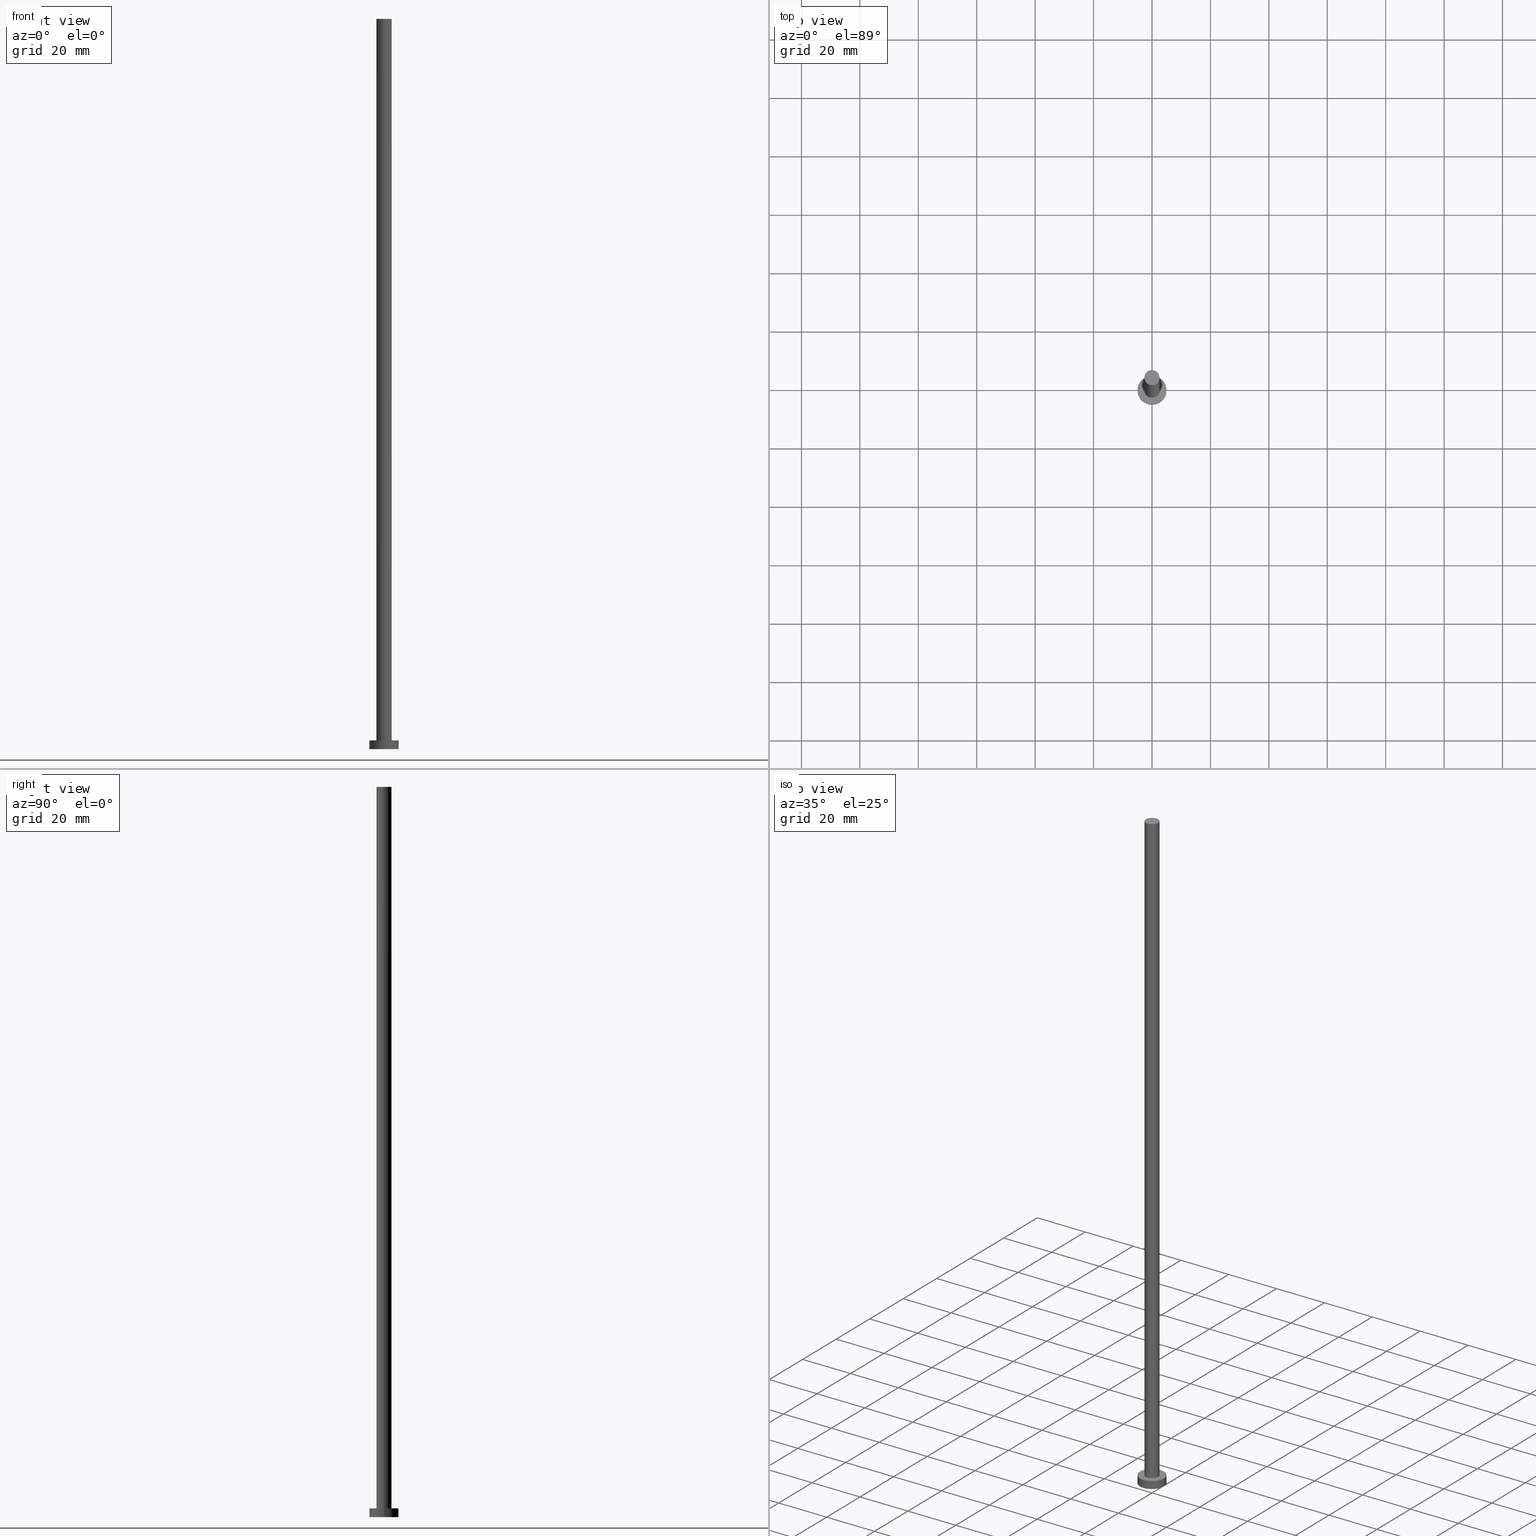
[diagram: canonical four-view strip — front | top / right | iso, engineering-drawing reading convention]
A machine part, canonical four-view strip (front | top / right | iso — engineering-drawing reading convention). The complete STEP part file that produces these views, byte-faithful:
ISO-10303-21;
HEADER;
FILE_DESCRIPTION (( 'STEP AP203' ),
    '1' );
FILE_NAME ('608e.STEP',
    '2023-02-13T15:48:42',
    ( '' ),
    ( '' ),
    'SwSTEP 2.0',
    'SolidWorks 2019',
    '' );
FILE_SCHEMA (( 'CONFIG_CONTROL_DESIGN' ));
ENDSEC;

DATA;
#1 = ORIENTED_EDGE ( 'NONE', *, *, #193, .F. ) ;
#2 = EDGE_LOOP ( 'NONE', ( #4, #239, #67, #217 ) ) ;
#3 = PERSON_AND_ORGANIZATION ( #20, #211 ) ;
#4 = ORIENTED_EDGE ( 'NONE', *, *, #100, .F. ) ;
#5 = PERSON_AND_ORGANIZATION ( #20, #211 ) ;
#6 = APPLICATION_CONTEXT ( 'configuration controlled 3d designs of mechanical parts and assemblies' ) ;
#7 = ORIENTED_EDGE ( 'NONE', *, *, #209, .F. ) ;
#8 = PERSON_AND_ORGANIZATION_ROLE ( 'design_supplier' ) ;
#9 = DIRECTION ( 'NONE',  ( 1.000000000000000000, 0.000000000000000000, 0.000000000000000000 ) ) ;
#10 = APPROVAL_STATUS ( 'not_yet_approved' ) ;
#11 = PLANE ( 'NONE',  #31 ) ;
#12 = CARTESIAN_POINT ( 'NONE',  ( -5.000000000000000000, 0.000000000000000000, 3.000000000000000000 ) ) ;
#13 = DIRECTION ( 'NONE',  ( -0.000000000000000000, -0.000000000000000000, -1.000000000000000000 ) ) ;
#14 = DATE_AND_TIME ( #180, #64 ) ;
#15 = CC_DESIGN_APPROVAL ( #107, ( #148 ) ) ;
#16 = PLANE ( 'NONE',  #200 ) ;
#17 = APPROVAL_STATUS ( 'not_yet_approved' ) ;
#18 = AXIS2_PLACEMENT_3D ( 'NONE', #118, #159, #60 ) ;
#19 = CC_DESIGN_DATE_AND_TIME_ASSIGNMENT ( #171, #146, ( #148 ) ) ;
#20 = PERSON ( 'NEUR�EN�', 'NEUR�EN�', 'NEUR�EN�', ('NEUR�EN�'), ('NEUR�EN�'), ('NEUR�EN�') ) ;
#21 = EDGE_LOOP ( 'NONE', ( #56, #215 ) ) ;
#22 = EDGE_LOOP ( 'NONE', ( #131, #149 ) ) ;
#23 = EDGE_LOOP ( 'NONE', ( #27, #191 ) ) ;
#24 = CC_DESIGN_PERSON_AND_ORGANIZATION_ASSIGNMENT ( #69, #44, ( #148 ) ) ;
#25 = VERTEX_POINT ( 'NONE', #89 ) ;
#26 = APPROVAL_DATE_TIME ( #192, #107 ) ;
#27 = ORIENTED_EDGE ( 'NONE', *, *, #242, .F. ) ;
#28 = CALENDAR_DATE ( 2023, 13, 2 ) ;
#29 = DIRECTION ( 'NONE',  ( 0.000000000000000000, 0.000000000000000000, 1.000000000000000000 ) ) ;
#30 = CARTESIAN_POINT ( 'NONE',  ( -2.600000000000000089, 0.000000000000000000, 3.000000000000000000 ) ) ;
#31 = AXIS2_PLACEMENT_3D ( 'NONE', #101, #244, #80 ) ;
#32 = FACE_OUTER_BOUND ( 'NONE', #21, .T. ) ;
#33 = CARTESIAN_POINT ( 'NONE',  ( 5.000000000000000000, 6.123233995736766282E-16, 3.000000000000000000 ) ) ;
#34 = CARTESIAN_POINT ( 'NONE',  ( -2.600000000000000089, 0.000000000000000000, 250.0000000000000000 ) ) ;
#35 = SECURITY_CLASSIFICATION ( '', '', #115 ) ;
#36 =( GEOMETRIC_REPRESENTATION_CONTEXT ( 3 ) GLOBAL_UNCERTAINTY_ASSIGNED_CONTEXT ( ( #96 ) ) GLOBAL_UNIT_ASSIGNED_CONTEXT ( ( #182, #251, #144 ) ) REPRESENTATION_CONTEXT ( 'NONE', 'WORKASPACE' ) );
#37 = VERTEX_POINT ( 'NONE', #40 ) ;
#38 = ORIENTED_EDGE ( 'NONE', *, *, #167, .T. ) ;
#39 = CLOSED_SHELL ( 'NONE', ( #142, #41, #183, #86, #55, #128, #247 ) ) ;
#40 = CARTESIAN_POINT ( 'NONE',  ( 2.600000000000000089, 3.184081677783118191E-16, 250.0000000000000000 ) ) ;
#41 = ADVANCED_FACE ( 'NONE', ( #195 ), #71, .T. ) ;
#42 = COORDINATED_UNIVERSAL_TIME_OFFSET ( 1, 0, .AHEAD. ) ;
#43 = COORDINATED_UNIVERSAL_TIME_OFFSET ( 1, 0, .AHEAD. ) ;
#44 = PERSON_AND_ORGANIZATION_ROLE ( 'creator' ) ;
#45 = DIRECTION ( 'NONE',  ( 1.000000000000000000, 0.000000000000000000, 0.000000000000000000 ) ) ;
#46 = LOCAL_TIME ( 16, 48, 42.00000000000000000, #42 ) ;
#47 = DIRECTION ( 'NONE',  ( 0.000000000000000000, 0.000000000000000000, 1.000000000000000000 ) ) ;
#48 = CARTESIAN_POINT ( 'NONE',  ( -5.000000000000000000, 0.000000000000000000, 0.000000000000000000 ) ) ;
#49 = DATE_TIME_ROLE ( 'classification_date' ) ;
#50 = VECTOR ( 'NONE', #157, 1000.000000000000000 ) ;
#51 = DIRECTION ( 'NONE',  ( 0.000000000000000000, 0.000000000000000000, 1.000000000000000000 ) ) ;
#52 = EDGE_CURVE ( 'NONE', #37, #168, #176, .T. ) ;
#53 = FACE_OUTER_BOUND ( 'NONE', #136, .T. ) ;
#54 = AXIS2_PLACEMENT_3D ( 'NONE', #189, #111, #145 ) ;
#55 = ADVANCED_FACE ( 'NONE', ( #32 ), #11, .F. ) ;
#56 = ORIENTED_EDGE ( 'NONE', *, *, #241, .F. ) ;
#57 = PERSON_AND_ORGANIZATION ( #20, #211 ) ;
#58 = PERSON_AND_ORGANIZATION_ROLE ( 'creator' ) ;
#59 = DIRECTION ( 'NONE',  ( -0.000000000000000000, -0.000000000000000000, -1.000000000000000000 ) ) ;
#60 = DIRECTION ( 'NONE',  ( 1.000000000000000000, 0.000000000000000000, 0.000000000000000000 ) ) ;
#61 = CARTESIAN_POINT ( 'NONE',  ( 0.000000000000000000, 0.000000000000000000, 0.000000000000000000 ) ) ;
#62 = DATE_AND_TIME ( #76, #81 ) ;
#63 = CARTESIAN_POINT ( 'NONE',  ( 5.000000000000000000, 6.123233995736766282E-16, 0.000000000000000000 ) ) ;
#64 = LOCAL_TIME ( 16, 48, 42.00000000000000000, #206 ) ;
#65 = DIRECTION ( 'NONE',  ( -1.000000000000000000, 0.000000000000000000, 0.000000000000000000 ) ) ;
#66 = DIRECTION ( 'NONE',  ( 0.000000000000000000, 0.000000000000000000, 1.000000000000000000 ) ) ;
#67 = ORIENTED_EDGE ( 'NONE', *, *, #193, .T. ) ;
#68 = ORIENTED_EDGE ( 'NONE', *, *, #143, .T. ) ;
#69 = PERSON_AND_ORGANIZATION ( #20, #211 ) ;
#70 = CIRCLE ( 'NONE', #140, 2.600000000000000089 ) ;
#71 = CYLINDRICAL_SURFACE ( 'NONE', #130, 5.000000000000000000 ) ;
#72 = ORIENTED_EDGE ( 'NONE', *, *, #234, .T. ) ;
#73 = ORIENTED_EDGE ( 'NONE', *, *, #161, .F. ) ;
#74 = DIRECTION ( 'NONE',  ( -1.000000000000000000, 0.000000000000000000, 0.000000000000000000 ) ) ;
#75 = FACE_OUTER_BOUND ( 'NONE', #150, .T. ) ;
#76 = CALENDAR_DATE ( 2023, 13, 2 ) ;
#77 = CARTESIAN_POINT ( 'NONE',  ( 2.600000000000000089, 3.184081677783118191E-16, 3.000000000000000000 ) ) ;
#78 = APPROVAL_DATE_TIME ( #14, #147 ) ;
#79 = FACE_OUTER_BOUND ( 'NONE', #151, .T. ) ;
#80 = DIRECTION ( 'NONE',  ( 1.000000000000000000, 0.000000000000000000, -0.000000000000000000 ) ) ;
#81 = LOCAL_TIME ( 16, 48, 42.00000000000000000, #240 ) ;
#82 = DIRECTION ( 'NONE',  ( 1.000000000000000000, 0.000000000000000000, 0.000000000000000000 ) ) ;
#83 = PRODUCT_DEFINITION_SHAPE ( 'NONE', 'NONE',  #148 ) ;
#84 = CIRCLE ( 'NONE', #185, 5.000000000000000000 ) ;
#85 = APPLICATION_PROTOCOL_DEFINITION ( 'international standard', 'config_control_design', 1994, #6 ) ;
#86 = ADVANCED_FACE ( 'NONE', ( #98, #75 ), #16, .T. ) ;
#87 = MANIFOLD_SOLID_BREP ( 'P�idat vysunut�m3', #39 ) ;
#88 = ORIENTED_EDGE ( 'NONE', *, *, #242, .T. ) ;
#89 = CARTESIAN_POINT ( 'NONE',  ( 5.000000000000000000, 6.123233995736766282E-16, 3.000000000000000000 ) ) ;
#90 = VERTEX_POINT ( 'NONE', #153 ) ;
#91 = CALENDAR_DATE ( 2023, 13, 2 ) ;
#92 = AXIS2_PLACEMENT_3D ( 'NONE', #198, #29, #9 ) ;
#93 = VERTEX_POINT ( 'NONE', #48 ) ;
#94 = APPROVAL_DATE_TIME ( #114, #227 ) ;
#95 = PRODUCT_DEFINITION_FORMATION_WITH_SPECIFIED_SOURCE ( 'LIBOVOLN�', '', #207, .NOT_KNOWN. ) ;
#96 = UNCERTAINTY_MEASURE_WITH_UNIT (LENGTH_MEASURE( 1.000000000000000082E-05 ), #182, 'distance_accuracy_value', 'NONE');
#97 = CARTESIAN_POINT ( 'NONE',  ( -2.600000000000000089, 0.000000000000000000, 250.0000000000000000 ) ) ;
#98 = FACE_BOUND ( 'NONE', #23, .T. ) ;
#99 = CIRCLE ( 'NONE', #253, 5.000000000000000000 ) ;
#100 = EDGE_CURVE ( 'NONE', #25, #113, #139, .T. ) ;
#101 = CARTESIAN_POINT ( 'NONE',  ( 0.000000000000000000, 0.000000000000000000, 0.000000000000000000 ) ) ;
#102 = DIRECTION ( 'NONE',  ( -0.000000000000000000, -0.000000000000000000, -1.000000000000000000 ) ) ;
#103 = CARTESIAN_POINT ( 'NONE',  ( 0.000000000000000000, 0.000000000000000000, 250.0000000000000000 ) ) ;
#104 = AXIS2_PLACEMENT_3D ( 'NONE', #187, #165, #127 ) ;
#105 = APPLICATION_CONTEXT ( 'configuration controlled 3d designs of mechanical parts and assemblies' ) ;
#106 = AXIS2_PLACEMENT_3D ( 'NONE', #208, #66, #82 ) ;
#107 = APPROVAL ( #10, 'NEUR�EN�' ) ;
#108 = AXIS2_PLACEMENT_3D ( 'NONE', #205, #51, #141 ) ;
#109 = CIRCLE ( 'NONE', #104, 2.600000000000000089 ) ;
#110 = FACE_OUTER_BOUND ( 'NONE', #22, .T. ) ;
#111 = DIRECTION ( 'NONE',  ( 0.000000000000000000, 0.000000000000000000, 1.000000000000000000 ) ) ;
#112 = ORIENTED_EDGE ( 'NONE', *, *, #100, .T. ) ;
#113 = VERTEX_POINT ( 'NONE', #63 ) ;
#114 = DATE_AND_TIME ( #243, #203 ) ;
#115 = SECURITY_CLASSIFICATION_LEVEL ( 'unclassified' ) ;
#116 = LOCAL_TIME ( 16, 48, 42.00000000000000000, #216 ) ;
#117 = APPROVAL_ROLE ( '' ) ;
#118 = CARTESIAN_POINT ( 'NONE',  ( 0.000000000000000000, 0.000000000000000000, 3.000000000000000000 ) ) ;
#119 = CC_DESIGN_PERSON_AND_ORGANIZATION_ASSIGNMENT ( #134, #8, ( #95 ) ) ;
#120 = DIRECTION ( 'NONE',  ( 1.000000000000000000, 0.000000000000000000, 0.000000000000000000 ) ) ;
#121 = FACE_OUTER_BOUND ( 'NONE', #2, .T. ) ;
#122 = CIRCLE ( 'NONE', #18, 5.000000000000000000 ) ;
#123 = AXIS2_PLACEMENT_3D ( 'NONE', #225, #13, #74 ) ;
#124 = DIRECTION ( 'NONE',  ( 1.000000000000000000, 0.000000000000000000, -0.000000000000000000 ) ) ;
#125 = APPROVAL_PERSON_ORGANIZATION ( #57, #227, #117 ) ;
#126 = CYLINDRICAL_SURFACE ( 'NONE', #184, 2.600000000000000089 ) ;
#127 = DIRECTION ( 'NONE',  ( 1.000000000000000000, 0.000000000000000000, 0.000000000000000000 ) ) ;
#128 = ADVANCED_FACE ( 'NONE', ( #53 ), #156, .T. ) ;
#129 = MECHANICAL_CONTEXT ( 'NONE', #6, 'mechanical' ) ;
#130 = AXIS2_PLACEMENT_3D ( 'NONE', #219, #204, #249 ) ;
#131 = ORIENTED_EDGE ( 'NONE', *, *, #161, .T. ) ;
#132 = APPLICATION_PROTOCOL_DEFINITION ( 'international standard', 'config_control_design', 1994, #105 ) ;
#133 = CC_DESIGN_APPROVAL ( #227, ( #95 ) ) ;
#134 = PERSON_AND_ORGANIZATION ( #20, #211 ) ;
#135 = EDGE_CURVE ( 'NONE', #90, #25, #122, .T. ) ;
#136 = EDGE_LOOP ( 'NONE', ( #7, #73, #68, #88 ) ) ;
#137 = LINE ( 'NONE', #221, #214 ) ;
#138 = LINE ( 'NONE', #34, #50 ) ;
#139 = LINE ( 'NONE', #33, #163 ) ;
#140 = AXIS2_PLACEMENT_3D ( 'NONE', #103, #223, #45 ) ;
#141 = DIRECTION ( 'NONE',  ( 1.000000000000000000, 0.000000000000000000, 0.000000000000000000 ) ) ;
#142 = ADVANCED_FACE ( 'NONE', ( #79 ), #126, .T. ) ;
#143 = EDGE_CURVE ( 'NONE', #168, #238, #138, .T. ) ;
#144 =( NAMED_UNIT ( * ) SI_UNIT ( $, .STERADIAN. ) SOLID_ANGLE_UNIT ( ) );
#145 = DIRECTION ( 'NONE',  ( 1.000000000000000000, 0.000000000000000000, 0.000000000000000000 ) ) ;
#146 = DATE_TIME_ROLE ( 'creation_date' ) ;
#147 = APPROVAL ( #17, 'NEUR�EN�' ) ;
#148 = PRODUCT_DEFINITION ( 'NEZN�M�', '', #95, #229 ) ;
#149 = ORIENTED_EDGE ( 'NONE', *, *, #52, .T. ) ;
#150 = EDGE_LOOP ( 'NONE', ( #235, #38 ) ) ;
#151 = EDGE_LOOP ( 'NONE', ( #166, #196, #170, #236 ) ) ;
#152 = PERSON_AND_ORGANIZATION_ROLE ( 'classification_officer' ) ;
#153 = CARTESIAN_POINT ( 'NONE',  ( -5.000000000000000000, 0.000000000000000000, 3.000000000000000000 ) ) ;
#154 = ADVANCED_BREP_SHAPE_REPRESENTATION ( '608e', ( #87, #54 ), #36 ) ;
#155 = APPROVAL_STATUS ( 'not_yet_approved' ) ;
#156 = CYLINDRICAL_SURFACE ( 'NONE', #237, 2.600000000000000089 ) ;
#157 = DIRECTION ( 'NONE',  ( -0.000000000000000000, -0.000000000000000000, -1.000000000000000000 ) ) ;
#158 = CARTESIAN_POINT ( 'NONE',  ( 0.000000000000000000, 0.000000000000000000, 0.000000000000000000 ) ) ;
#159 = DIRECTION ( 'NONE',  ( 0.000000000000000000, 0.000000000000000000, 1.000000000000000000 ) ) ;
#160 = CC_DESIGN_PERSON_AND_ORGANIZATION_ASSIGNMENT ( #3, #58, ( #95 ) ) ;
#161 = EDGE_CURVE ( 'NONE', #168, #37, #70, .T. ) ;
#162 = AXIS2_PLACEMENT_3D ( 'NONE', #186, #255, #254 ) ;
#163 = VECTOR ( 'NONE', #102, 1000.000000000000000 ) ;
#164 = DIRECTION ( 'NONE',  ( 1.000000000000000000, 0.000000000000000000, 0.000000000000000000 ) ) ;
#165 = DIRECTION ( 'NONE',  ( 0.000000000000000000, 0.000000000000000000, 1.000000000000000000 ) ) ;
#166 = ORIENTED_EDGE ( 'NONE', *, *, #52, .F. ) ;
#167 = EDGE_CURVE ( 'NONE', #25, #90, #169, .T. ) ;
#168 = VERTEX_POINT ( 'NONE', #97 ) ;
#169 = CIRCLE ( 'NONE', #92, 5.000000000000000000 ) ;
#170 = ORIENTED_EDGE ( 'NONE', *, *, #252, .T. ) ;
#171 = DATE_AND_TIME ( #28, #46 ) ;
#172 = EDGE_LOOP ( 'NONE', ( #188, #112, #72, #1 ) ) ;
#173 = APPROVAL_ROLE ( '' ) ;
#174 = LINE ( 'NONE', #12, #231 ) ;
#175 = PERSON_AND_ORGANIZATION ( #20, #211 ) ;
#176 = CIRCLE ( 'NONE', #108, 2.600000000000000089 ) ;
#177 = DIRECTION ( 'NONE',  ( -0.000000000000000000, -0.000000000000000000, -1.000000000000000000 ) ) ;
#178 = APPROVAL_ROLE ( '' ) ;
#179 = CARTESIAN_POINT ( 'NONE',  ( 0.000000000000000000, 0.000000000000000000, 250.0000000000000000 ) ) ;
#180 = CALENDAR_DATE ( 2023, 13, 2 ) ;
#181 = DIRECTION ( 'NONE',  ( 0.000000000000000000, 0.000000000000000000, 1.000000000000000000 ) ) ;
#182 =( LENGTH_UNIT ( ) NAMED_UNIT ( * ) SI_UNIT ( .MILLI., .METRE. ) );
#183 = ADVANCED_FACE ( 'NONE', ( #121 ), #201, .T. ) ;
#184 = AXIS2_PLACEMENT_3D ( 'NONE', #199, #250, #65 ) ;
#185 = AXIS2_PLACEMENT_3D ( 'NONE', #61, #212, #164 ) ;
#186 = CARTESIAN_POINT ( 'NONE',  ( 0.000000000000000000, 0.000000000000000000, 250.0000000000000000 ) ) ;
#187 = CARTESIAN_POINT ( 'NONE',  ( 0.000000000000000000, 0.000000000000000000, 3.000000000000000000 ) ) ;
#188 = ORIENTED_EDGE ( 'NONE', *, *, #167, .F. ) ;
#189 = CARTESIAN_POINT ( 'NONE',  ( 0.000000000000000000, 0.000000000000000000, 0.000000000000000000 ) ) ;
#190 = PRODUCT_RELATED_PRODUCT_CATEGORY ( 'detail', '', ( #207 ) ) ;
#191 = ORIENTED_EDGE ( 'NONE', *, *, #252, .F. ) ;
#192 = DATE_AND_TIME ( #91, #116 ) ;
#193 = EDGE_CURVE ( 'NONE', #90, #93, #174, .T. ) ;
#194 = CC_DESIGN_APPROVAL ( #147, ( #35 ) ) ;
#195 = FACE_OUTER_BOUND ( 'NONE', #172, .T. ) ;
#196 = ORIENTED_EDGE ( 'NONE', *, *, #209, .T. ) ;
#197 = PERSON_AND_ORGANIZATION_ROLE ( 'design_owner' ) ;
#198 = CARTESIAN_POINT ( 'NONE',  ( 0.000000000000000000, 0.000000000000000000, 3.000000000000000000 ) ) ;
#199 = CARTESIAN_POINT ( 'NONE',  ( 0.000000000000000000, 0.000000000000000000, 250.0000000000000000 ) ) ;
#200 = AXIS2_PLACEMENT_3D ( 'NONE', #226, #181, #124 ) ;
#201 = CYLINDRICAL_SURFACE ( 'NONE', #123, 5.000000000000000000 ) ;
#202 = CC_DESIGN_PERSON_AND_ORGANIZATION_ASSIGNMENT ( #222, #197, ( #207 ) ) ;
#203 = LOCAL_TIME ( 16, 48, 42.00000000000000000, #43 ) ;
#204 = DIRECTION ( 'NONE',  ( -0.000000000000000000, -0.000000000000000000, -1.000000000000000000 ) ) ;
#205 = CARTESIAN_POINT ( 'NONE',  ( 0.000000000000000000, 0.000000000000000000, 250.0000000000000000 ) ) ;
#206 = COORDINATED_UNIVERSAL_TIME_OFFSET ( 1, 0, .AHEAD. ) ;
#207 = PRODUCT ( '608e', '608e', '', ( #129 ) ) ;
#208 = CARTESIAN_POINT ( 'NONE',  ( 0.000000000000000000, 0.000000000000000000, 3.000000000000000000 ) ) ;
#209 = EDGE_CURVE ( 'NONE', #37, #213, #137, .T. ) ;
#210 = PLANE ( 'NONE',  #162 ) ;
#211 = ORGANIZATION ( 'NEUR�EN�', 'NEUR�EN�', '' ) ;
#212 = DIRECTION ( 'NONE',  ( 0.000000000000000000, 0.000000000000000000, 1.000000000000000000 ) ) ;
#213 = VERTEX_POINT ( 'NONE', #77 ) ;
#214 = VECTOR ( 'NONE', #248, 1000.000000000000000 ) ;
#215 = ORIENTED_EDGE ( 'NONE', *, *, #234, .F. ) ;
#216 = COORDINATED_UNIVERSAL_TIME_OFFSET ( 1, 0, .AHEAD. ) ;
#217 = ORIENTED_EDGE ( 'NONE', *, *, #241, .T. ) ;
#218 = CC_DESIGN_PERSON_AND_ORGANIZATION_ASSIGNMENT ( #5, #152, ( #35 ) ) ;
#219 = CARTESIAN_POINT ( 'NONE',  ( 0.000000000000000000, 0.000000000000000000, 3.000000000000000000 ) ) ;
#220 = APPROVAL_PERSON_ORGANIZATION ( #230, #147, #178 ) ;
#221 = CARTESIAN_POINT ( 'NONE',  ( 2.600000000000000089, 3.184081677783118191E-16, 250.0000000000000000 ) ) ;
#222 = PERSON_AND_ORGANIZATION ( #20, #211 ) ;
#223 = DIRECTION ( 'NONE',  ( 0.000000000000000000, 0.000000000000000000, 1.000000000000000000 ) ) ;
#224 = CIRCLE ( 'NONE', #106, 2.600000000000000089 ) ;
#225 = CARTESIAN_POINT ( 'NONE',  ( 0.000000000000000000, 0.000000000000000000, 3.000000000000000000 ) ) ;
#226 = CARTESIAN_POINT ( 'NONE',  ( 0.000000000000000000, 0.000000000000000000, 3.000000000000000000 ) ) ;
#227 = APPROVAL ( #155, 'NEUR�EN�' ) ;
#228 = SHAPE_DEFINITION_REPRESENTATION ( #83, #154 ) ;
#229 = DESIGN_CONTEXT ( 'detailed design', #105, 'design' ) ;
#230 = PERSON_AND_ORGANIZATION ( #20, #211 ) ;
#231 = VECTOR ( 'NONE', #59, 1000.000000000000000 ) ;
#232 = CC_DESIGN_SECURITY_CLASSIFICATION ( #35, ( #95 ) ) ;
#233 = APPROVAL_PERSON_ORGANIZATION ( #175, #107, #173 ) ;
#234 = EDGE_CURVE ( 'NONE', #113, #93, #99, .T. ) ;
#235 = ORIENTED_EDGE ( 'NONE', *, *, #135, .T. ) ;
#236 = ORIENTED_EDGE ( 'NONE', *, *, #143, .F. ) ;
#237 = AXIS2_PLACEMENT_3D ( 'NONE', #179, #177, #246 ) ;
#238 = VERTEX_POINT ( 'NONE', #30 ) ;
#239 = ORIENTED_EDGE ( 'NONE', *, *, #135, .F. ) ;
#240 = COORDINATED_UNIVERSAL_TIME_OFFSET ( 1, 0, .AHEAD. ) ;
#241 = EDGE_CURVE ( 'NONE', #93, #113, #84, .T. ) ;
#242 = EDGE_CURVE ( 'NONE', #238, #213, #109, .T. ) ;
#243 = CALENDAR_DATE ( 2023, 13, 2 ) ;
#244 = DIRECTION ( 'NONE',  ( 0.000000000000000000, 0.000000000000000000, 1.000000000000000000 ) ) ;
#245 = CC_DESIGN_DATE_AND_TIME_ASSIGNMENT ( #62, #49, ( #35 ) ) ;
#246 = DIRECTION ( 'NONE',  ( -1.000000000000000000, 0.000000000000000000, 0.000000000000000000 ) ) ;
#247 = ADVANCED_FACE ( 'NONE', ( #110 ), #210, .T. ) ;
#248 = DIRECTION ( 'NONE',  ( -0.000000000000000000, -0.000000000000000000, -1.000000000000000000 ) ) ;
#249 = DIRECTION ( 'NONE',  ( -1.000000000000000000, 0.000000000000000000, 0.000000000000000000 ) ) ;
#250 = DIRECTION ( 'NONE',  ( -0.000000000000000000, -0.000000000000000000, -1.000000000000000000 ) ) ;
#251 =( NAMED_UNIT ( * ) PLANE_ANGLE_UNIT ( ) SI_UNIT ( $, .RADIAN. ) );
#252 = EDGE_CURVE ( 'NONE', #213, #238, #224, .T. ) ;
#253 = AXIS2_PLACEMENT_3D ( 'NONE', #158, #47, #120 ) ;
#254 = DIRECTION ( 'NONE',  ( 1.000000000000000000, 0.000000000000000000, -0.000000000000000000 ) ) ;
#255 = DIRECTION ( 'NONE',  ( 0.000000000000000000, 0.000000000000000000, 1.000000000000000000 ) ) ;
ENDSEC;
END-ISO-10303-21;
